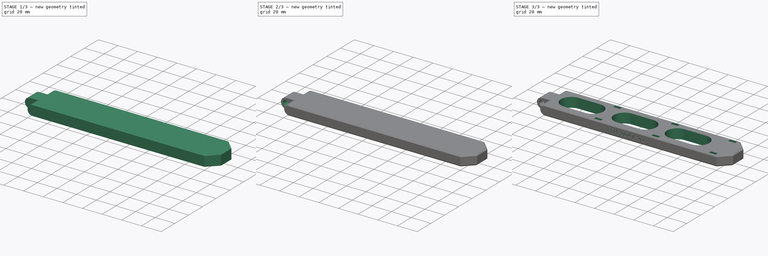
[diagram: build sequence overview — one tinted view per stage of 3, left to right]
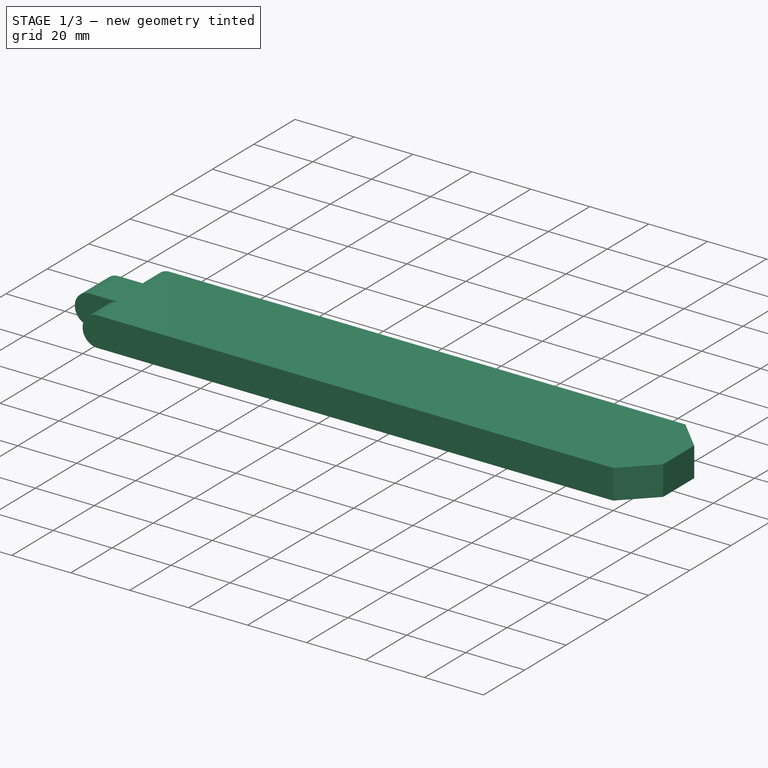
[diagram: stage 1 of 3 — iso view after this stage's code; geometry added in this stage tinted green]
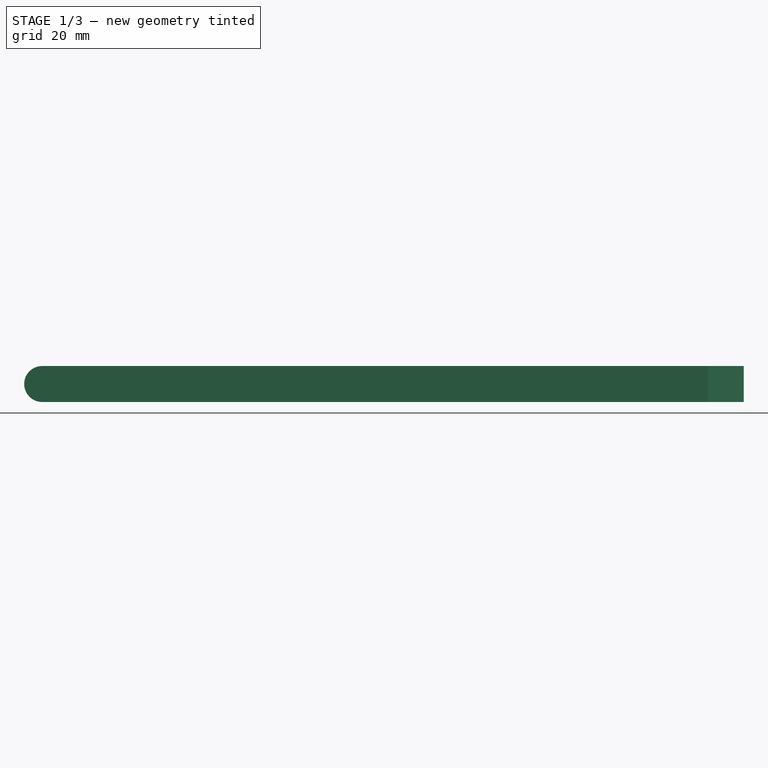
[diagram: stage 1 of 3 — front view after this stage's code; geometry added in this stage tinted green]
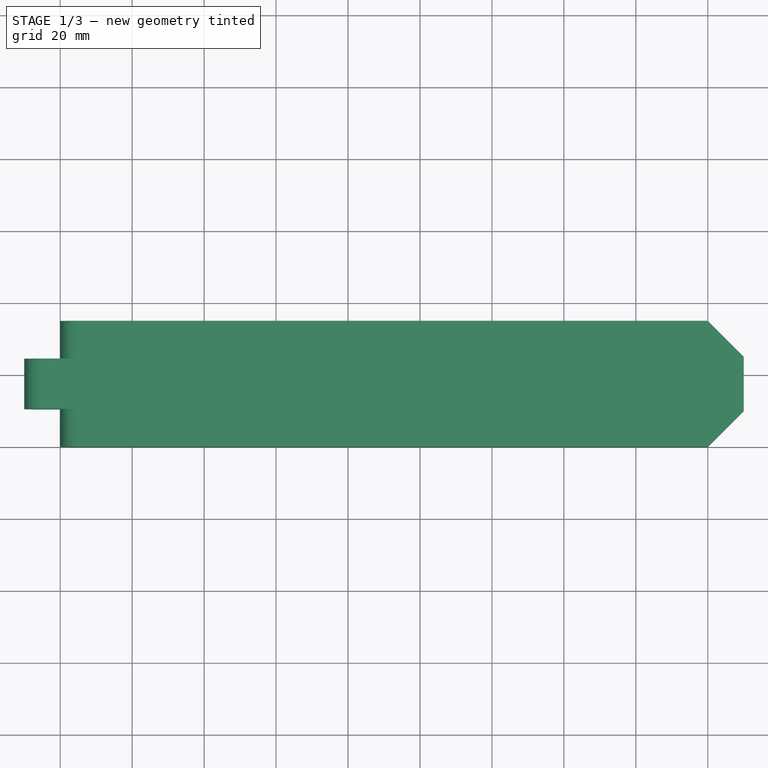
[diagram: stage 1 of 3 — top view after this stage's code; geometry added in this stage tinted green]
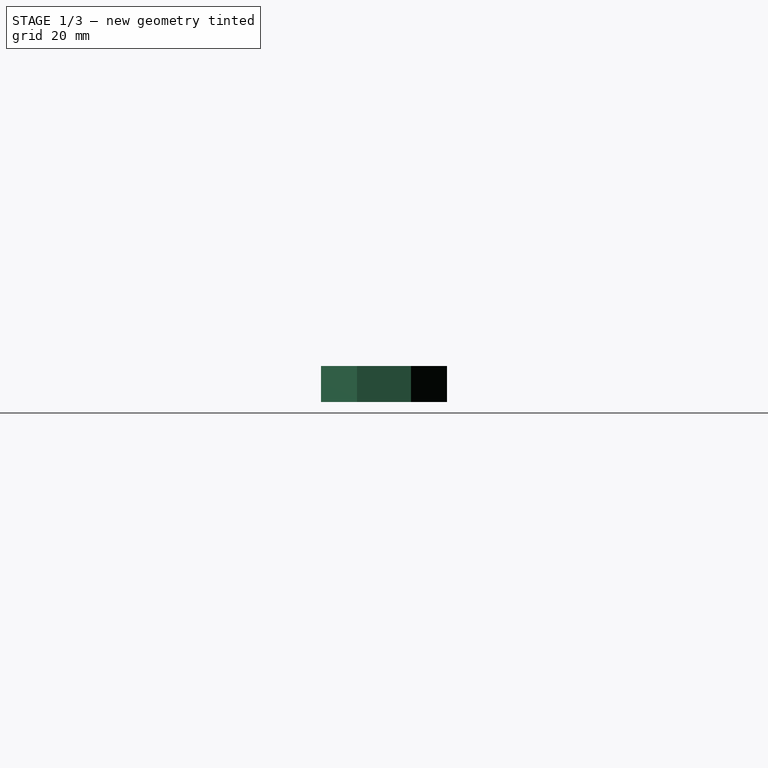
[diagram: stage 1 of 3 — right view after this stage's code; geometry added in this stage tinted green]
FCSTD DOCUMENT  (FreeCAD 0.19R)
Label: FDM-0047_umbilical-swivel-extension
License: All rights reserved
LicenseURL: http://en.wikipedia.org/wiki/All_rights_reserved
objects: Sketcher::SketchObject×4, PartDesign::Pocket×4, PartDesign::Chamfer×2, PartDesign::Pad×1, PartDesign::Fillet×1, Part::Part2DObjectPython×1, PartDesign::Plane×1, PartDesign::Body×1
note: 23 computed .brp shape members not serialized (recipe doc carries the construction recipe); baked Part::Feature solids carry a one-line shape summary decoded from their .brp

FEATURE [Sketcher::SketchObject] Sketch
  FullyConstrained = true
  MapMode = 5
  Support = -> [XY_Plane]
  sketch-geometry (8):
    g0: LineSegment StartX=0 StartY=0 StartZ=0 EndX=190 EndY=0 EndZ=0
    g1: LineSegment StartX=190 StartY=0 StartZ=0 EndX=190 EndY=35 EndZ=0
    g2: LineSegment StartX=190 StartY=35 StartZ=0 EndX=0 EndY=35 EndZ=0
    g3: LineSegment StartX=0 StartY=35 StartZ=0 EndX=0 EndY=24.5 EndZ=0
    g4: LineSegment StartX=0 StartY=24.5 StartZ=0 EndX=-10 EndY=24.5 EndZ=0
    g5: LineSegment StartX=-10 StartY=24.5 StartZ=0 EndX=-10 EndY=10.5 EndZ=0
    g6: LineSegment StartX=-10 StartY=10.5 StartZ=0 EndX=0 EndY=10.5 EndZ=0
    g7: LineSegment StartX=0 StartY=10.5 StartZ=0 EndX=0 EndY=0 EndZ=0
  constraints (23):
    c: Coincident(g0,g1)
    c: Coincident(g1,g2)
    c: Horizontal(g0)
    c: Horizontal(g2)
    c: Vertical(g1)
    c: Coincident(g0,g-1)
    c: Coincident(g3,g4)
    c: Coincident(g4,g5)
    c: Coincident(g5,g6)
    c: Coincident(g6,g7)
    c: Coincident(g7,g0)
    c: PointOnObject(g3,g7)
    c: Parallel(g3,g7)
    c: Distance(g3,g0) = 35
    c: Perpendicular(g3,g4)
    c: Perpendicular(g4,g5)
    c: Perpendicular(g6,g5)
    c: Distance(g3) = 10.5
    c: Distance(g4) = 10
    c: Vertical(g3)
    c: Coincident(g2,g3)
    c: DistanceX(g5,g0) = 200
    c: Equal(g7,g3)
FEATURE [PartDesign::Pad] Pad
  Direction = (1,1,1)
  Length = 10
  Length2 = 100
  Profile = -> Sketch
  Type = 0
FEATURE [PartDesign::Fillet] Fillet
  Base = -> Pad [Edge18,Edge19,Edge12,Edge13,Edge24,Edge23]
  BaseFeature = -> Pad
  Radius = 4.99
  SupportTransform = false
FEATURE [PartDesign::Chamfer] Chamfer
  Angle = 45
  Base = -> Fillet [Edge30,Edge6]
  BaseFeature = -> Fillet
  ChamferType = 0
  FlipDirection = false
  Size = 10
  Size2 = 1
  SupportTransform = false
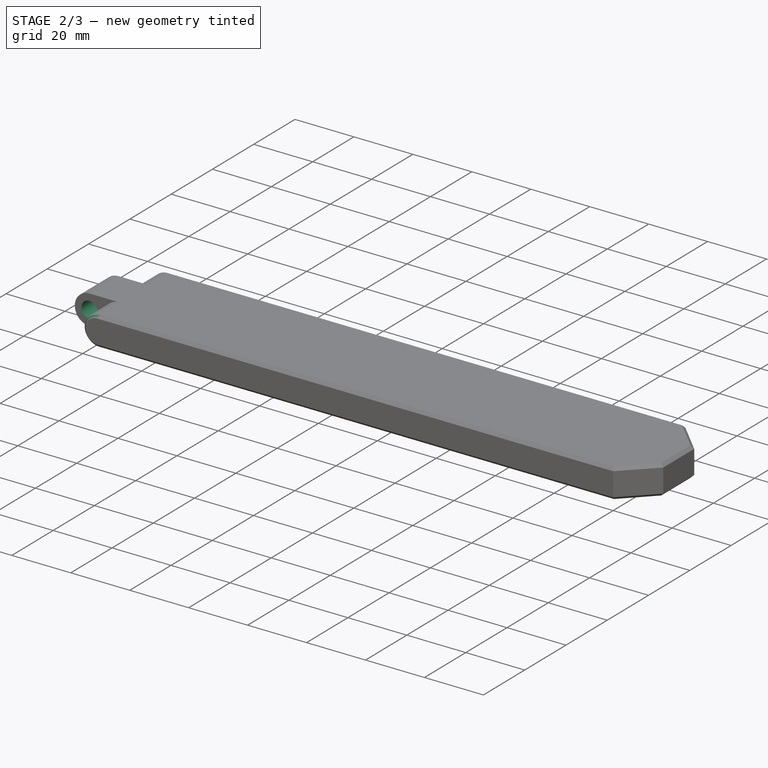
[diagram: stage 2 of 3 — iso view after this stage's code; geometry added in this stage tinted green]
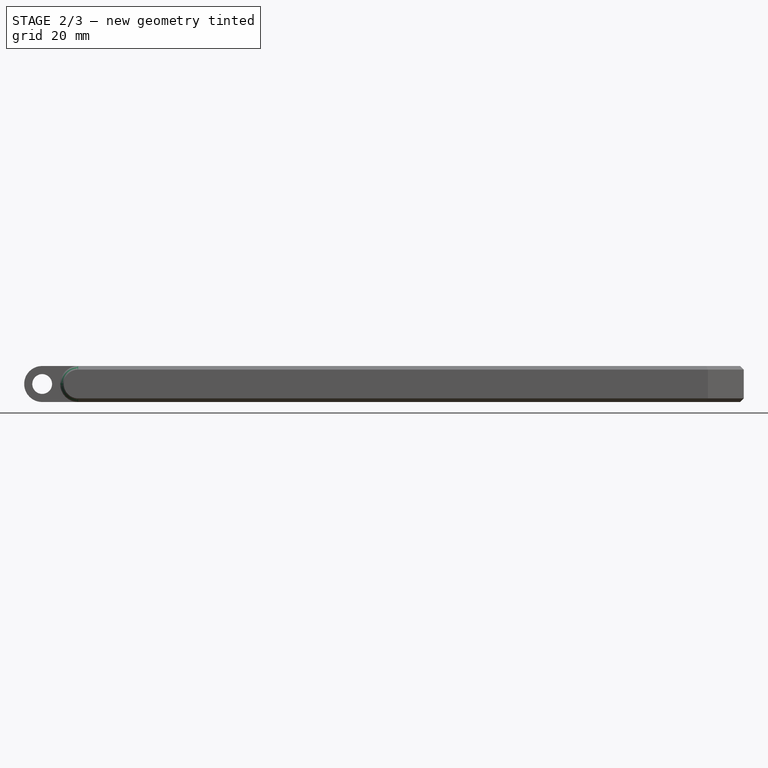
[diagram: stage 2 of 3 — front view after this stage's code; geometry added in this stage tinted green]
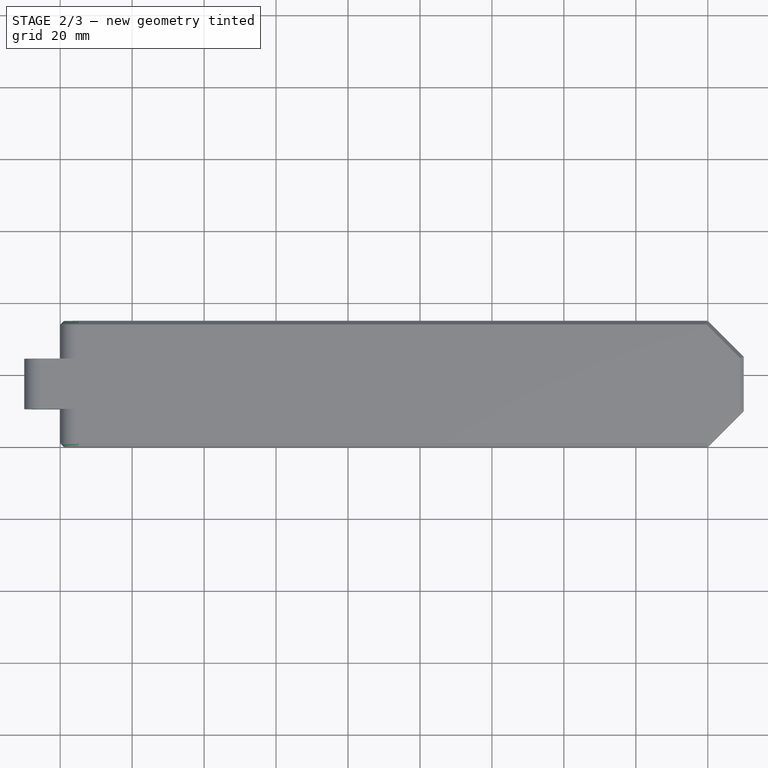
[diagram: stage 2 of 3 — top view after this stage's code; geometry added in this stage tinted green]
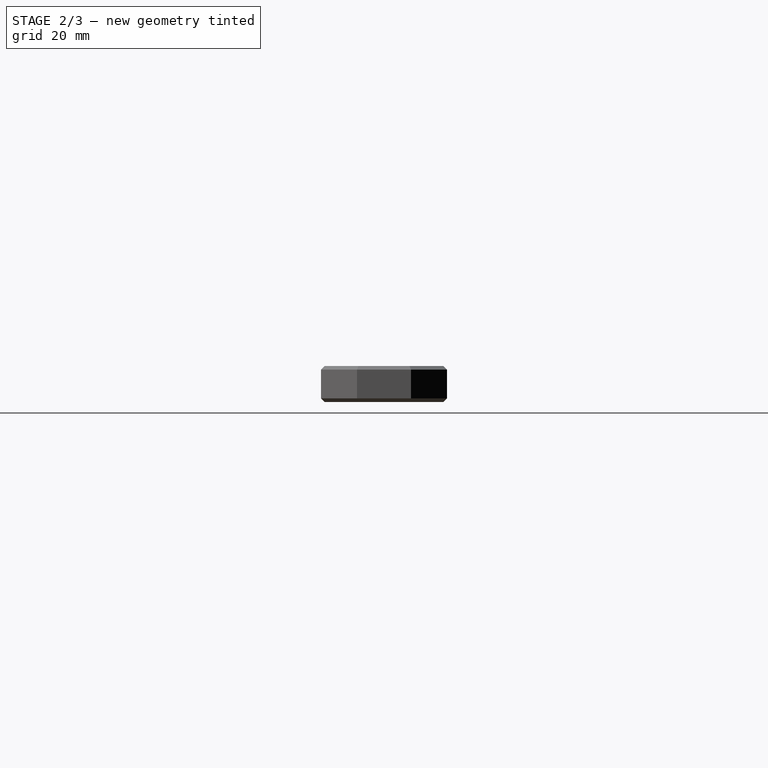
[diagram: stage 2 of 3 — right view after this stage's code; geometry added in this stage tinted green]
FEATURE [Sketcher::SketchObject] Sketch001
  FullyConstrained = true
  MapMode = 5
  Placement = pos=(0,0,0) rot=(1,0,0;1.5708rad)
  Support = -> [XZ_Plane]
  sketch-geometry (1):
    g0: Circle CenterX=-5 CenterY=5 CenterZ=0 NormalX=0 NormalY=0 NormalZ=1 AngleXU=0 Radius=2.75
  constraints (3):
    c: Diameter(g0) = 5.5
    c: DistanceY(g-1,g0) = 5
    c: DistanceX(g0,g-1) = 5
FEATURE [PartDesign::Pocket] Pocket
  BaseFeature = -> Chamfer
  Length = 25
  Length2 = 100
  Profile = -> Sketch001
  Type = 0
FEATURE [PartDesign::Chamfer] Chamfer001
  Angle = 45
  Base = -> Pocket [Edge27,Edge4,Edge19,Edge23,Edge25,Edge11,Edge9,Edge7]
  BaseFeature = -> Pocket
  ChamferType = 0
  FlipDirection = false
  Size = 1
  Size2 = 1
  SupportTransform = false
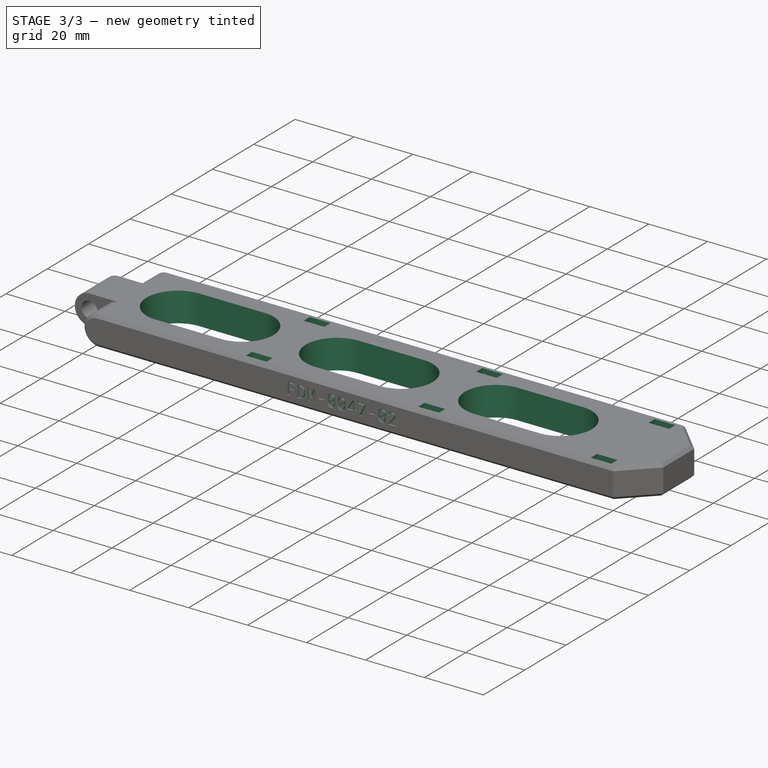
[diagram: stage 3 of 3 — iso view after this stage's code; geometry added in this stage tinted green]
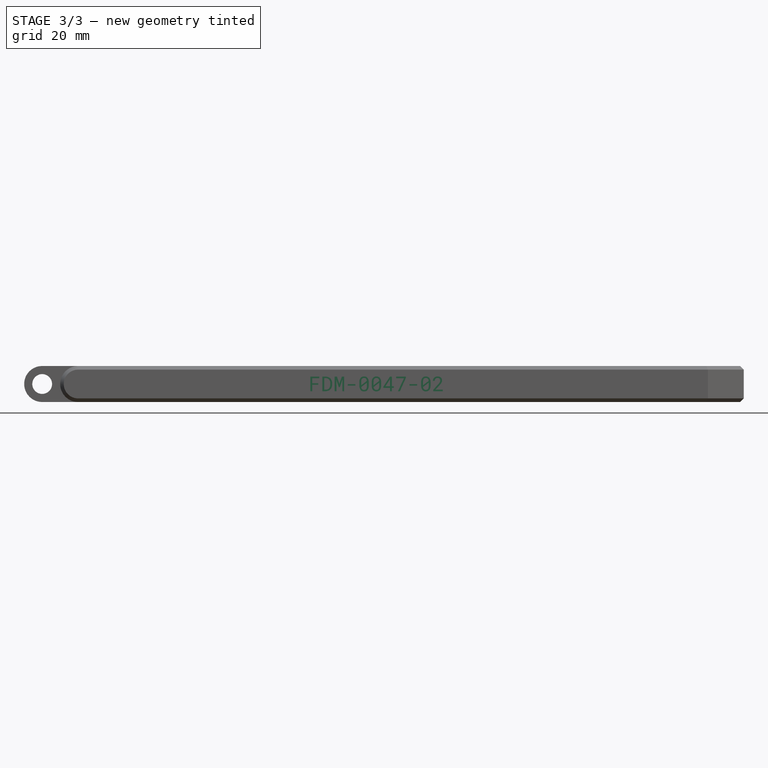
[diagram: stage 3 of 3 — front view after this stage's code; geometry added in this stage tinted green]
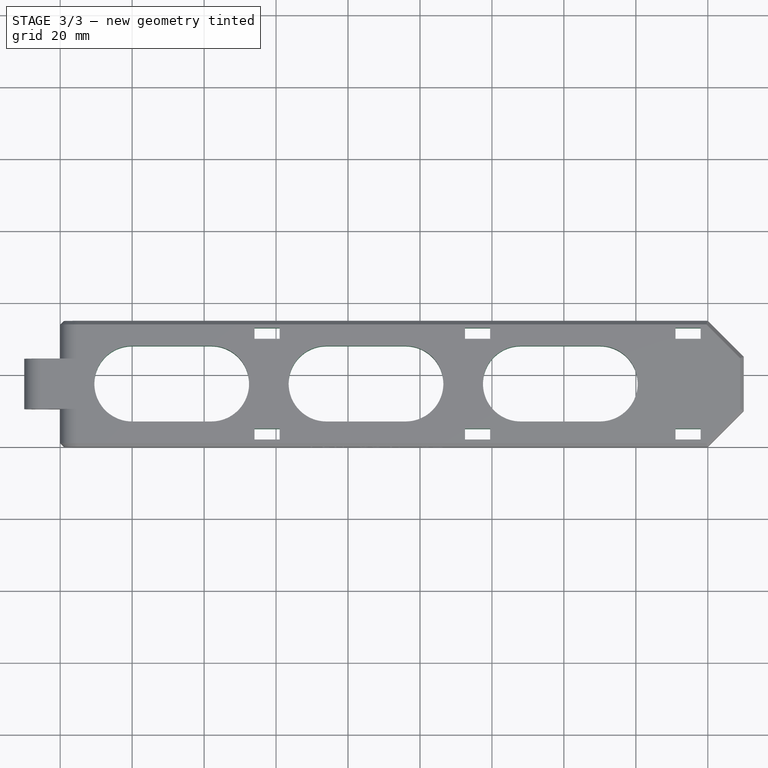
[diagram: stage 3 of 3 — top view after this stage's code; geometry added in this stage tinted green]
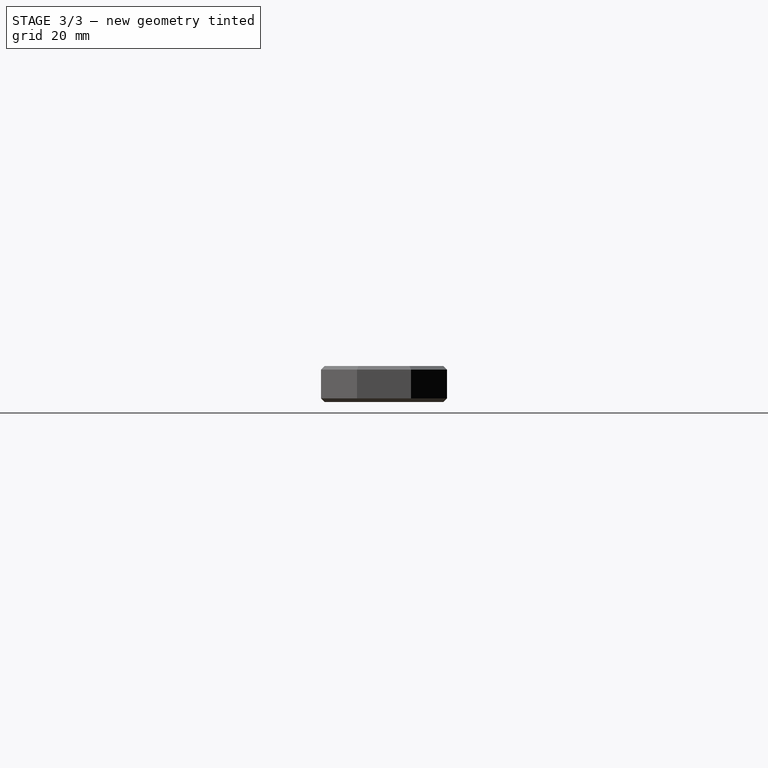
[diagram: stage 3 of 3 — right view after this stage's code; geometry added in this stage tinted green]
FEATURE [Sketcher::SketchObject] Sketch002  label="CableTieHoles"
  FullyConstrained = true
  MapMode = 5
  Support = -> [XY_Plane]
  sketch-geometry (24):
    g0: LineSegment StartX=54 StartY=33 StartZ=0 EndX=61 EndY=33 EndZ=0
    g1: LineSegment StartX=61 StartY=33 StartZ=0 EndX=61 EndY=30 EndZ=0
    g2: LineSegment StartX=61 StartY=30 StartZ=0 EndX=54 EndY=30 EndZ=0
    g3: LineSegment StartX=54 StartY=30 StartZ=0 EndX=54 EndY=33 EndZ=0
    g4: LineSegment StartX=54 StartY=5 StartZ=0 EndX=61 EndY=5 EndZ=0
    g5: LineSegment StartX=61 StartY=5 StartZ=0 EndX=61 EndY=2 EndZ=0
    g6: LineSegment StartX=61 StartY=2 StartZ=0 EndX=54 EndY=2 EndZ=0
    g7: LineSegment StartX=54 StartY=2 StartZ=0 EndX=54 EndY=5 EndZ=0
    g8: LineSegment StartX=171 StartY=33 StartZ=0 EndX=178 EndY=33 EndZ=0
    g9: LineSegment StartX=178 StartY=33 StartZ=0 EndX=178 EndY=30 EndZ=0
    g10: LineSegment StartX=178 StartY=30 StartZ=0 EndX=171 EndY=30 EndZ=0
    g11: LineSegment StartX=171 StartY=30 StartZ=0 EndX=171 EndY=33 EndZ=0
    g12: LineSegment StartX=171 StartY=5 StartZ=0 EndX=178 EndY=5 EndZ=0
    g13: LineSegment StartX=178 StartY=5 StartZ=0 EndX=178 EndY=2 EndZ=0
    g14: LineSegment StartX=178 StartY=2 StartZ=0 EndX=171 EndY=2 EndZ=0
    g15: LineSegment StartX=171 StartY=2 StartZ=0 EndX=171 EndY=5 EndZ=0
    g16: LineSegment StartX=112.5 StartY=33 StartZ=0 EndX=119.5 EndY=33 EndZ=0
    g17: LineSegment StartX=119.5 StartY=33 StartZ=0 EndX=119.5 EndY=30 EndZ=0
    g18: LineSegment StartX=119.5 StartY=30 StartZ=0 EndX=112.5 EndY=30 EndZ=0
    g19: LineSegment StartX=112.5 StartY=30 StartZ=0 EndX=112.5 EndY=33 EndZ=0
    g20: LineSegment StartX=112.5 StartY=5 StartZ=0 EndX=119.5 EndY=5 EndZ=0
    g21: LineSegment StartX=119.5 StartY=5 StartZ=0 EndX=119.5 EndY=2 EndZ=0
    g22: LineSegment StartX=119.5 StartY=2 StartZ=0 EndX=112.5 EndY=2 EndZ=0
    g23: LineSegment StartX=112.5 StartY=2 StartZ=0 EndX=112.5 EndY=5 EndZ=0
  constraints (72):
    c: Coincident(g0,g1)
    c: Coincident(g1,g2)
    c: Coincident(g2,g3)
    c: Coincident(g3,g0)
    c: Horizontal(g0)
    c: Horizontal(g2)
    c: Vertical(g1)
    c: Vertical(g3)
    c: Coincident(g4,g5)
    c: Coincident(g5,g6)
    c: Coincident(g6,g7)
    c: Coincident(g7,g4)
    c: Horizontal(g4)
    c: Horizontal(g6)
    c: Vertical(g5)
    c: Vertical(g7)
    c: Coincident(g8,g9)
    c: Coincident(g9,g10)
    c: Coincident(g10,g11)
    c: Coincident(g11,g8)
    c: Horizontal(g8)
    c: Horizontal(g10)
    c: Vertical(g9)
    c: Vertical(g11)
    c: Coincident(g12,g13)
    c: Coincident(g13,g14)
    c: Coincident(g14,g15)
    c: Coincident(g15,g12)
    c: Horizontal(g12)
    c: Horizontal(g14)
    c: Vertical(g13)
    c: Vertical(g15)
    c: DistanceY(g7,g7) = 3
    c: DistanceX(g6,g6) = 7
    c: PointOnObject(g2,g7)
    c: PointOnObject(g14,g6)
    c: PointOnObject(g10,g15)
    c: PointOnObject(g10,g2)
    c: Equal(g6,g2)
    c: Equal(g6,g14)
    c: Equal(g6,g10)
    c: Equal(g7,g3)
    c: Equal(g7,g15)
    c: Equal(g11,g7)
    c: DistanceY(g4,g2) = 25
    c: DistanceX(g1,g10) = 110
    c: DistanceY(g-1,g6) = 2
    c: DistanceX(g-1,g6) = 54
    c: Coincident(g16,g17)
    c: Coincident(g17,g18)
    c: Coincident(g18,g19)
    c: Coincident(g19,g16)
    c: Horizontal(g16)
    c: Horizontal(g18)
    c: Vertical(g17)
    c: Vertical(g19)
    c: Horizontal(g0,g16)
    c: Horizontal(g1,g18)
    c: Coincident(g20,g21)
    c: Coincident(g21,g22)
    c: Coincident(g22,g23)
    c: Coincident(g23,g20)
    c: Horizontal(g20)
    c: Horizontal(g22)
    c: Vertical(g21)
    c: Vertical(g23)
    c: Horizontal(g5,g22)
    c: Equal(g4,g20)
    c: Equal(g20,g18)
    c: Vertical(g20,g18)
    c: Horizontal(g20,g4)
    c: DistanceX(g1,g18) = 51.5
FEATURE [PartDesign::Pocket] Pocket001
  BaseFeature = -> Chamfer001
  Length = 10
  Length2 = 100
  Profile = -> Sketch002
  Reversed = true
  Type = 0
FEATURE [Sketcher::SketchObject] Sketch003  label="ReducePrintTime"
  FullyConstrained = true
  MapMode = 5
  Support = -> [XY_Plane]
  sketch-geometry (12):
    g0: ArcOfCircle CenterX=20 CenterY=17.5 CenterZ=0 NormalX=0 NormalY=0 NormalZ=1 AngleXU=0 Radius=10.5 StartAngle=1.5708 EndAngle=4.71239
    g1: ArcOfCircle CenterX=42 CenterY=17.5 CenterZ=0 NormalX=0 NormalY=0 NormalZ=1 AngleXU=0 Radius=10.5 StartAngle=4.71239 EndAngle=7.85398
    g2: LineSegment StartX=20 StartY=7 StartZ=0 EndX=42 EndY=7 EndZ=0
    g3: LineSegment StartX=20 StartY=28 StartZ=0 EndX=42 EndY=28 EndZ=0
    g4: ArcOfCircle CenterX=74 CenterY=17.5 CenterZ=0 NormalX=0 NormalY=0 NormalZ=1 AngleXU=0 Radius=10.5 StartAngle=1.5708 EndAngle=4.71239
    g5: ArcOfCircle CenterX=96 CenterY=17.5 CenterZ=0 NormalX=0 NormalY=0 NormalZ=1 AngleXU=0 Radius=10.5 StartAngle=4.71239 EndAngle=7.85398
    g6: LineSegment StartX=74 StartY=7 StartZ=0 EndX=96 EndY=7 EndZ=0
    g7: LineSegment StartX=74 StartY=28 StartZ=0 EndX=96 EndY=28 EndZ=0
    g8: ArcOfCircle CenterX=128 CenterY=17.5 CenterZ=0 NormalX=0 NormalY=0 NormalZ=1 AngleXU=0 Radius=10.5 StartAngle=1.5708 EndAngle=4.71239
    g9: ArcOfCircle CenterX=150 CenterY=17.5 CenterZ=0 NormalX=0 NormalY=0 NormalZ=1 AngleXU=0 Radius=10.5 StartAngle=4.71239 EndAngle=7.85398
    g10: LineSegment StartX=128 StartY=7 StartZ=0 EndX=150 EndY=7 EndZ=0
    g11: LineSegment StartX=128 StartY=28 StartZ=0 EndX=150 EndY=28 EndZ=0
  constraints (30):
    c: Tangent(g0,g3) = 1.5708
    c: Tangent(g0,g2) = -1.5708
    c: Tangent(g2,g1) = -1.5708
    c: Tangent(g3,g1) = 1.5708
    c: Horizontal(g2)
    c: Equal(g0,g1)
    c: Tangent(g4,g7) = 1.5708
    c: Tangent(g4,g6) = -1.5708
    c: Tangent(g6,g5) = -1.5708
    c: Tangent(g7,g5) = 1.5708
    c: Horizontal(g6)
    c: Equal(g4,g5)
    c: Horizontal(g1,g4)
    c: Horizontal(g1,g4)
    c: DistanceX(g1,g4) = 32
    c: DistanceX(g-1,g0) = 20
    c: DistanceY(g-1,g0) = 17.5
    c: DistanceX(g4,g5) = 22
    c: DistanceX(g0,g1) = 22
    c: Tangent(g8,g11) = 1.5708
    c: Tangent(g8,g10) = -1.5708
    c: Tangent(g10,g9) = -1.5708
    c: Tangent(g11,g9) = 1.5708
    c: Horizontal(g10)
    c: Equal(g8,g9)
    c: Horizontal(g5,g8)
    c: DistanceY(g5) = 28
    c: Horizontal(g5,g8)
    c: DistanceX(g5,g8) = 32
    c: DistanceX(g8,g9) = 22
FEATURE [PartDesign::Pocket] Pocket002
  BaseFeature = -> Pocket001
  Length = 12
  Length2 = 100
  Profile = -> Sketch003
  Reversed = true
  Type = 0
FEATURE [Part::Part2DObjectPython] ShapeString  label="PN"  # Draft 2D object (typed FeaturePython)
  FontFile = ../../lib/fonts/RobotoMono-VariableFont_weight.ttf
  MapMode = 2
  Placement = pos=(69,0,3) rot=(1,0,0;1.5708rad)
  Size = 5
  String = FDM-0047-02
  Tracking = 0
FEATURE [PartDesign::Pocket] Pocket003
  BaseFeature = -> Pocket002
  Length = 0.5
  Length2 = 100
  Profile = -> ShapeString
  Type = 0
FEATURE [PartDesign::Plane] DatumPlane  label="PrintPlane"
  Length = 147.528
  MapMode = 5
  Placement = pos=(0,0,0) rot=(1,0,0;3.14159rad)
  ResizeMode = 0
  Support = -> [Pocket003]
  Width = 66.2063
FEATURE [PartDesign::Body] Body
  Group = -> [Sketch,Pad,Fillet,Chamfer,Sketch001,Pocket,Chamfer001,Sketch002,Pocket001,Sketch003,Pocket002,DatumPlane,ShapeString,Pocket003]
  Origin = -> Origin
  Tip = -> Pocket003
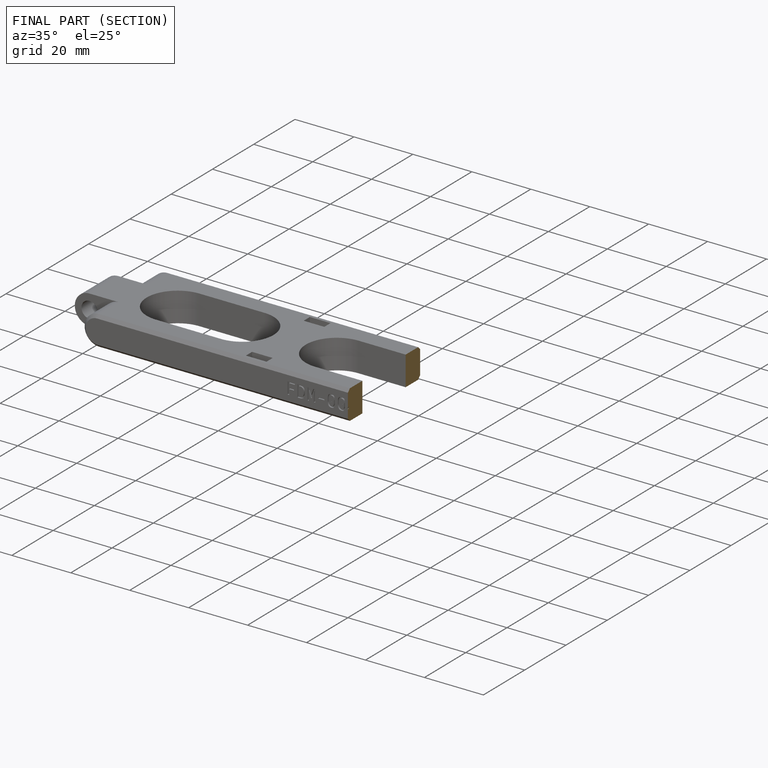
[diagram: finished part — half-section view (interior)]
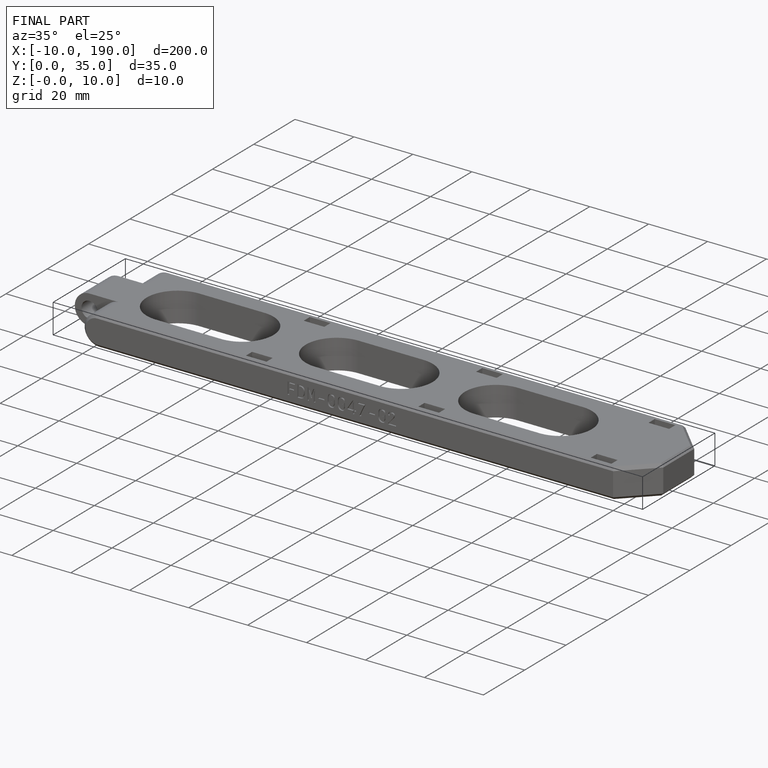
[diagram: finished part — iso view with bounding-box wireframe]
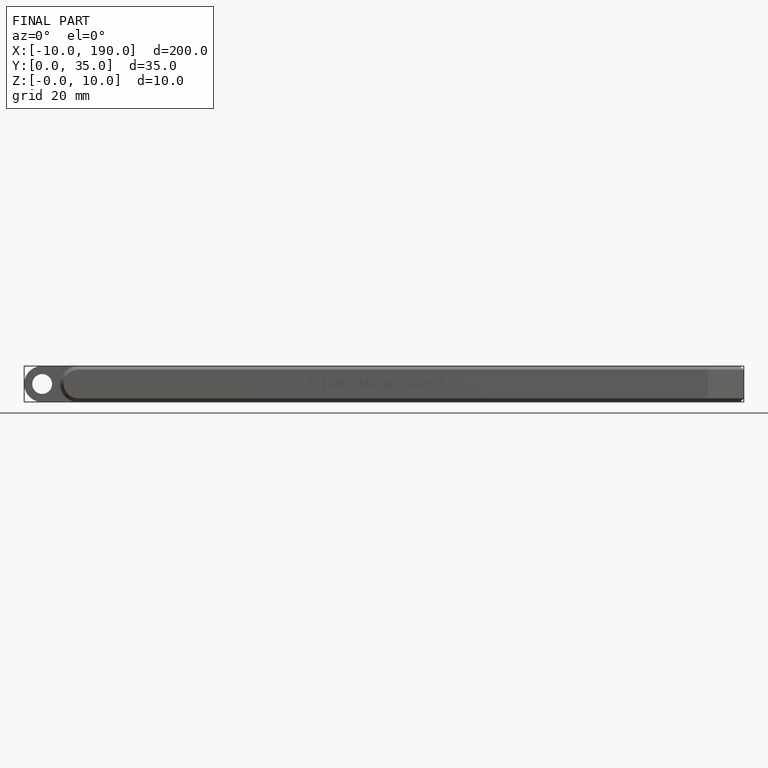
[diagram: finished part — front view with bounding-box wireframe]
